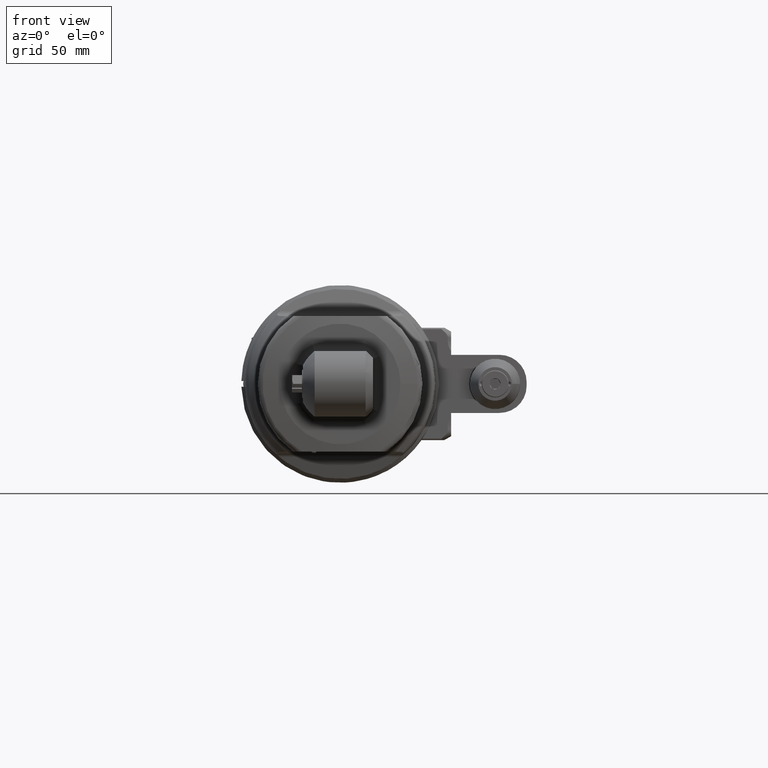
[diagram: clean part render]
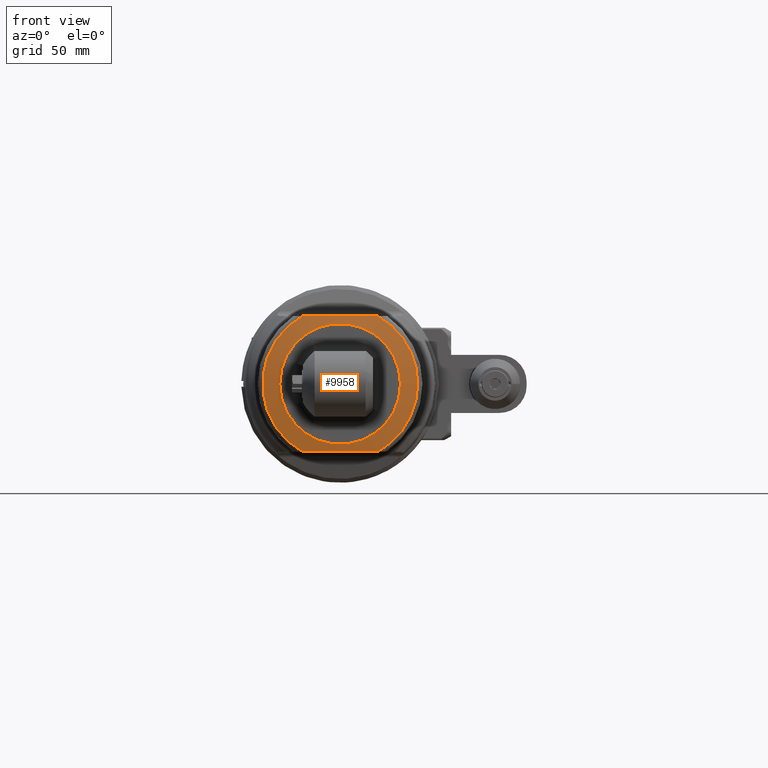
[diagram: same view with one face highlighted and labeled with its STEP entity id]
A machine part, front view. The second image highlights one B-rep face of the part: STEP entity #9958.
In plain terms, the highlighted conical surface has half-angle 80 deg.
Its self-contained STEP definition (entity closure, byte-faithful):
#253=(
BOUNDED_CURVE()
B_SPLINE_CURVE(2,(#58244,#58245,#58246,#58247),.UNSPECIFIED.,.F.,.F.)
B_SPLINE_CURVE_WITH_KNOTS((3,1,3),(-59.1975800582856,-42.2022928335956,
-33.350093357756),.UNSPECIFIED.)
CURVE()
GEOMETRIC_REPRESENTATION_ITEM()
RATIONAL_B_SPLINE_CURVE((6.5718472576503,7.19173782589553,6.89472470543237,
6.57184725766218))
REPRESENTATION_ITEM('')
);
#255=(
BOUNDED_CURVE()
B_SPLINE_CURVE(2,(#58347,#58348,#58349),.UNSPECIFIED.,.F.,.F.)
B_SPLINE_CURVE_WITH_KNOTS((3,3),(-12.6210236869705,-5.71470552977772),
 .UNSPECIFIED.)
CURVE()
GEOMETRIC_REPRESENTATION_ITEM()
RATIONAL_B_SPLINE_CURVE((1.76632585035514,2.01971511097915,1.76632585035525))
REPRESENTATION_ITEM('')
);
#673=CONICAL_SURFACE('',#10891,35.58919044688,1.39626340159546);
#1068=FACE_OUTER_BOUND('',#1698,.T.);
#1698=EDGE_LOOP('',(#8405,#8406,#8407,#8408,#8409,#8410,#8411,#8412));
#2232=CIRCLE('',#10889,40.020944533);
#2233=CIRCLE('',#10890,40.020944533);
#2234=CIRCLE('',#10892,40.020944533);
#2235=CIRCLE('',#10893,31.15743636076);
#3005=LINE('',#58369,#3738);
#3738=VECTOR('',#13053,35.58919044688);
#4638=VERTEX_POINT('',#58230);
#4639=VERTEX_POINT('',#58243);
#4661=VERTEX_POINT('',#58333);
#4662=VERTEX_POINT('',#58346);
#4663=VERTEX_POINT('',#58363);
#4664=VERTEX_POINT('',#58368);
#5941=EDGE_CURVE('',#4638,#4639,#253,.T.);
#5969=EDGE_CURVE('',#4661,#4662,#255,.T.);
#5971=EDGE_CURVE('',#4662,#4663,#2232,.T.);
#5972=EDGE_CURVE('',#4663,#4638,#2233,.T.);
#5973=EDGE_CURVE('',#4639,#4661,#2234,.T.);
#5974=EDGE_CURVE('',#4663,#4664,#3005,.T.);
#5975=EDGE_CURVE('',#4664,#4664,#2235,.T.);
#8405=ORIENTED_EDGE('',*,*,#5973,.F.);
#8406=ORIENTED_EDGE('',*,*,#5941,.F.);
#8407=ORIENTED_EDGE('',*,*,#5972,.F.);
#8408=ORIENTED_EDGE('',*,*,#5974,.T.);
#8409=ORIENTED_EDGE('',*,*,#5975,.F.);
#8410=ORIENTED_EDGE('',*,*,#5974,.F.);
#8411=ORIENTED_EDGE('',*,*,#5971,.F.);
#8412=ORIENTED_EDGE('',*,*,#5969,.F.);
#9958=ADVANCED_FACE('',(#1068),#673,.T.);
#10889=AXIS2_PLACEMENT_3D('',#58364,#13045,#13046);
#10890=AXIS2_PLACEMENT_3D('',#58365,#13047,#13048);
#10891=AXIS2_PLACEMENT_3D('',#58366,#13049,#13050);
#10892=AXIS2_PLACEMENT_3D('',#58367,#13051,#13052);
#10893=AXIS2_PLACEMENT_3D('',#58370,#13054,#13055);
#13045=DIRECTION('center_axis',(-1.,0.,0.));
#13046=DIRECTION('ref_axis',(0.,1.,0.));
#13047=DIRECTION('center_axis',(-1.,0.,0.));
#13048=DIRECTION('ref_axis',(0.,1.,0.));
#13049=DIRECTION('center_axis',(-1.,0.,0.));
#13050=DIRECTION('ref_axis',(0.,-1.,0.));
#13051=DIRECTION('center_axis',(-1.,0.,0.));
#13052=DIRECTION('ref_axis',(0.,-0.484949640279294,-0.874542078114589));
#13053=DIRECTION('',(0.17364817766693,-0.984807753012208,1.2060416625019E-16));
#13054=DIRECTION('center_axis',(1.,0.,0.));
#13055=DIRECTION('ref_axis',(0.,-1.,0.));
#58230=CARTESIAN_POINT('',(79.43712436551,19.40814265492,-35.));
#58243=CARTESIAN_POINT('',(79.43712436551,-19.40814265491,-35.));
#58244=CARTESIAN_POINT('Ctrl Pts',(79.4371243654785,19.4081426551891,-35.));
#58245=CARTESIAN_POINT('Ctrl Pts',(80.5773281559946,6.07393949129064,-35.));
#58246=CARTESIAN_POINT('Ctrl Pts',(80.056596934685,-12.1636718324654,-35.));
#58247=CARTESIAN_POINT('Ctrl Pts',(79.4371243655024,-19.4081426549094,-35.));
#58333=CARTESIAN_POINT('',(79.43712436551,-19.40814265492,35.));
#58346=CARTESIAN_POINT('',(79.43712436551,19.40814265491,35.));
#58347=CARTESIAN_POINT('Ctrl Pts',(79.4371243655015,-19.4081426549193,35.));
#58348=CARTESIAN_POINT('Ctrl Pts',(81.0967089353309,-3.78452824634223E-12,
35.));
#58349=CARTESIAN_POINT('Ctrl Pts',(79.4371243655024,19.4081426549094,35.));
#58363=CARTESIAN_POINT('',(79.4371243654785,40.0209445331338,-4.90115216213561E-15));
#58364=CARTESIAN_POINT('Origin',(79.43712436551,0.,0.));
#58365=CARTESIAN_POINT('Origin',(79.43712436551,0.,0.));
#58366=CARTESIAN_POINT('Origin',(80.21856218275,0.,0.));
#58367=CARTESIAN_POINT('Origin',(79.43712436551,0.,0.));
#58368=CARTESIAN_POINT('',(80.999999999998,31.1574363607596,-3.81568547088417E-15));
#58369=CARTESIAN_POINT('',(80.21856218275,35.58919044688,-4.35841881650172E-15));
#58370=CARTESIAN_POINT('Origin',(81.,0.,0.));